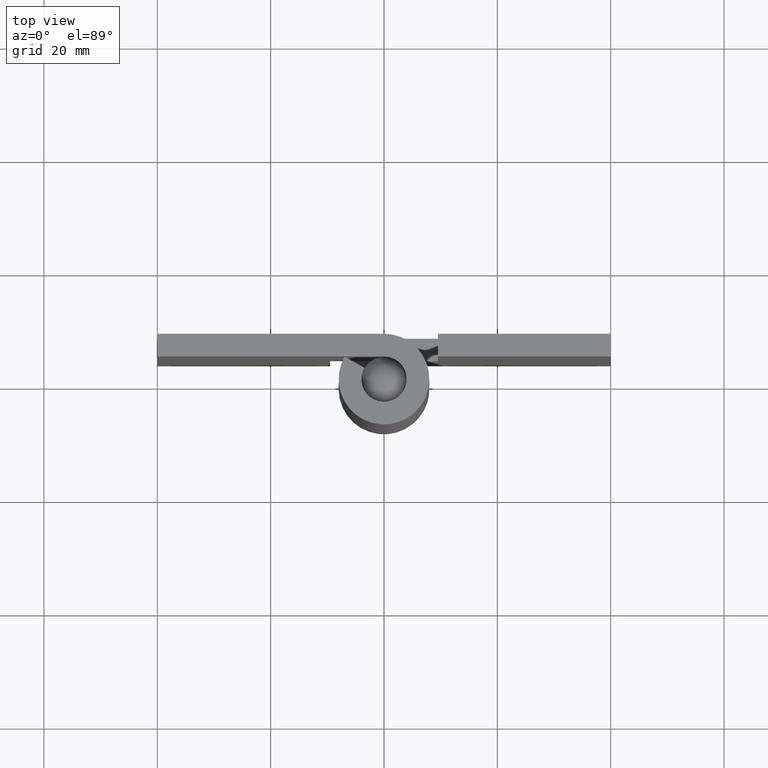
[diagram: clean part render]
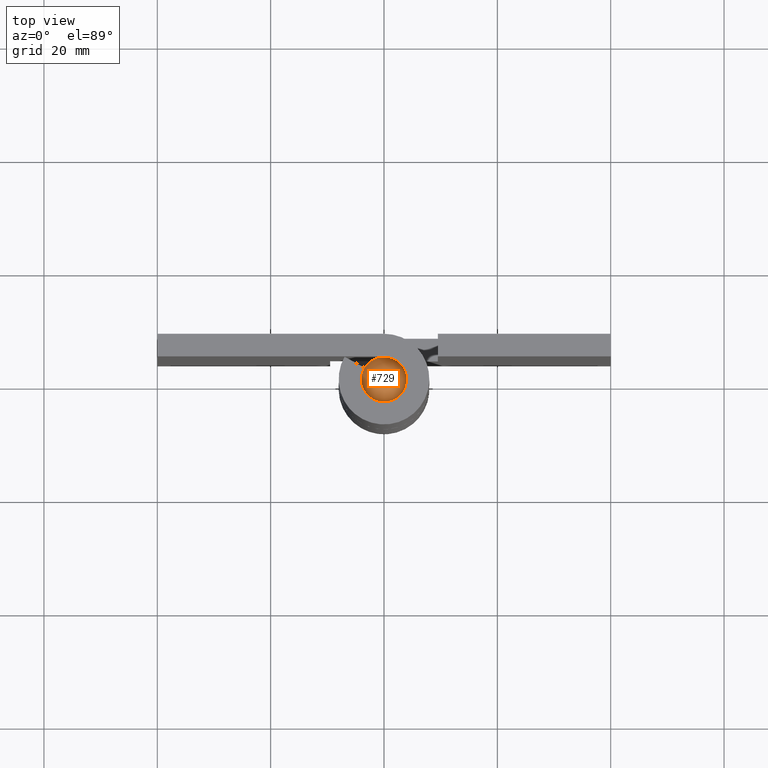
[diagram: same view with one face highlighted and labeled with its STEP entity id]
A machine part, top view. The second image highlights one B-rep face of the part: STEP entity #729.
In plain terms, the highlighted face is a freeform B-spline surface patch.
Its self-contained STEP definition (entity closure, byte-faithful):
#515=CARTESIAN_POINT('',(-0.472136938659876,3.972038105450761,94.0));
#516=VERTEX_POINT('',#515);
#517=CARTESIAN_POINT('',(4.0,0.0,94.0));
#518=VERTEX_POINT('',#517);
#519=CARTESIAN_POINT('',(-0.472136938659876,3.972038105450761,94.0));
#520=CARTESIAN_POINT('',(-0.236896478640829,4.0,94.0));
#521=CARTESIAN_POINT('',(0.0,4.0,94.0));
#522=CARTESIAN_POINT('',(4.000000000000000,4.000000000000000,94.000000000000014));
#523=CARTESIAN_POINT('',(4.0,0.0,94.0));
#531=(BOUNDED_CURVE()B_SPLINE_CURVE(2,(#519,#520,#521,#522,#523),.UNSPECIFIED.,.F.,.U.)B_SPLINE_CURVE_WITH_KNOTS((3,2,3),(0.229562473512850,0.250000000000000,0.500000000000000),.UNSPECIFIED.)CURVE()GEOMETRIC_REPRESENTATION_ITEM()RATIONAL_B_SPLINE_CURVE((0.956026754182408,0.976055948330373,1.0,0.707106781186548,1.0))REPRESENTATION_ITEM(''));
#532=EDGE_CURVE('',#516,#518,#531,.T.);
#534=CARTESIAN_POINT('',(0.244194158265194,-3.992539193679775,94.0));
#535=VERTEX_POINT('',#534);
#536=CARTESIAN_POINT('',(4.0,0.0,94.0));
#537=CARTESIAN_POINT('',(4.000000000000000,-3.762824267385283,94.0));
#538=CARTESIAN_POINT('',(0.244194158265194,-3.992539193679775,94.0));
#546=(BOUNDED_CURVE()B_SPLINE_CURVE(2,(#536,#537,#538),.UNSPECIFIED.,.F.,.U.)B_SPLINE_CURVE_WITH_KNOTS((3,3),(0.500000000000000,0.739332962231098),.UNSPECIFIED.)CURVE()GEOMETRIC_REPRESENTATION_ITEM()RATIONAL_B_SPLINE_CURVE((1.0,0.719603993295901,0.976072041649905))REPRESENTATION_ITEM(''));
#547=EDGE_CURVE('',#518,#535,#546,.T.);
#614=CARTESIAN_POINT('',(-4.0,0.0,94.0));
#615=VERTEX_POINT('',#614);
#616=CARTESIAN_POINT('',(-4.0,0.0,94.0));
#617=CARTESIAN_POINT('',(-4.0,3.552698103746307,94.0));
#618=CARTESIAN_POINT('',(-0.472136938659876,3.972038105450761,94.0));
#626=(BOUNDED_CURVE()B_SPLINE_CURVE(2,(#616,#617,#618),.UNSPECIFIED.,.F.,.U.)B_SPLINE_CURVE_WITH_KNOTS((3,3),(0.0,0.229562473512850),.UNSPECIFIED.)CURVE()GEOMETRIC_REPRESENTATION_ITEM()RATIONAL_B_SPLINE_CURVE((1.0,0.731050832856174,0.956026754182408))REPRESENTATION_ITEM(''));
#627=EDGE_CURVE('',#615,#516,#626,.T.);
#661=CARTESIAN_POINT('',(0.244194158265194,-3.992539193679776,94.0));
#662=CARTESIAN_POINT('',(0.122211053320474,-4.0,94.0));
#663=CARTESIAN_POINT('',(0.0,-4.0,94.0));
#664=CARTESIAN_POINT('',(-4.000000000000000,-4.000000000000000,94.000000000000014));
#665=CARTESIAN_POINT('',(-4.0,0.0,94.0));
#673=(BOUNDED_CURVE()B_SPLINE_CURVE(2,(#661,#662,#663,#664,#665),.UNSPECIFIED.,.F.,.U.)B_SPLINE_CURVE_WITH_KNOTS((3,2,3),(0.739332962231098,0.750000000000000,1.0),.UNSPECIFIED.)CURVE()GEOMETRIC_REPRESENTATION_ITEM()RATIONAL_B_SPLINE_CURVE((0.976072041649904,0.987502787890646,1.0,0.707106781186548,1.0))REPRESENTATION_ITEM(''));
#674=EDGE_CURVE('',#535,#615,#673,.T.);
#679=CARTESIAN_POINT('',(-2.622022120425378,-2.622022120425380,92.500000000000000));
#680=CARTESIAN_POINT('',(-2.374661543026758,-3.166215390702343,93.018867924528308));
#681=CARTESIAN_POINT('',(-0.998865569685858,-3.995462278743432,93.809523809523782));
#682=CARTESIAN_POINT('',(0.998865569685858,-3.995462278743432,93.809523809523782));
#683=CARTESIAN_POINT('',(2.374661543026753,-3.166215390702343,93.018867924528308));
#684=CARTESIAN_POINT('',(2.622022120425370,-2.622022120425380,92.499999999999972));
#685=CARTESIAN_POINT('',(-3.166215390702343,-2.374661543026758,93.018867924528308));
#686=CARTESIAN_POINT('',(-2.996596709057574,-2.996596709057574,93.809523809523782));
#687=CARTESIAN_POINT('',(-1.353301739574387,-4.059905218723166,95.161290322580655));
#688=CARTESIAN_POINT('',(1.353301739574393,-4.059905218723166,95.161290322580655));
#689=CARTESIAN_POINT('',(2.996596709057573,-2.996596709057574,93.809523809523782));
#690=CARTESIAN_POINT('',(3.166215390702337,-2.374661543026758,93.018867924528266));
#691=CARTESIAN_POINT('',(-3.995462278743432,-0.998865569685859,93.809523809523782));
#692=CARTESIAN_POINT('',(-4.059905218723166,-1.353301739574386,95.161290322580655));
#693=CARTESIAN_POINT('',(-2.097617696340300,-2.097617696340296,98.000000000000014));
#694=CARTESIAN_POINT('',(2.097617696340321,-2.097617696340296,98.0));
#695=CARTESIAN_POINT('',(4.059905218723174,-1.353301739574386,95.161290322580655));
#696=CARTESIAN_POINT('',(3.995462278743430,-0.998865569685859,93.809523809523753));
#697=CARTESIAN_POINT('',(-3.995462278743432,0.998865569685857,93.809523809523782));
#698=CARTESIAN_POINT('',(-4.059905218723166,1.353301739574395,95.161290322580655));
#699=CARTESIAN_POINT('',(-2.097617696340300,2.097617696340325,98.0));
#700=CARTESIAN_POINT('',(2.097617696340321,2.097617696340325,97.999999999999986));
#701=CARTESIAN_POINT('',(4.059905218723174,1.353301739574395,95.161290322580598));
#702=CARTESIAN_POINT('',(3.995462278743430,0.998865569685857,93.809523809523753));
#703=CARTESIAN_POINT('',(-3.166215390702343,2.374661543026752,93.018867924528266));
#704=CARTESIAN_POINT('',(-2.996596709057574,2.996596709057573,93.809523809523782));
#705=CARTESIAN_POINT('',(-1.353301739574387,4.059905218723175,95.161290322580598));
#706=CARTESIAN_POINT('',(1.353301739574393,4.059905218723175,95.161290322580598));
#707=CARTESIAN_POINT('',(2.996596709057573,2.996596709057573,93.809523809523753));
#708=CARTESIAN_POINT('',(3.166215390702337,2.374661543026752,93.018867924528266));
#709=CARTESIAN_POINT('',(-2.622022120425378,2.622022120425369,92.499999999999972));
#710=CARTESIAN_POINT('',(-2.374661543026758,3.166215390702337,93.018867924528266));
#711=CARTESIAN_POINT('',(-0.998865569685858,3.995462278743430,93.809523809523753));
#712=CARTESIAN_POINT('',(0.998865569685858,3.995462278743430,93.809523809523753));
#713=CARTESIAN_POINT('',(2.374661543026753,3.166215390702337,93.018867924528266));
#714=CARTESIAN_POINT('',(2.622022120425370,2.622022120425369,92.499999999999972));
#722=(BOUNDED_SURFACE()B_SPLINE_SURFACE(2,2,((#679,#685,#691,#697,#703,#709),(#680,#686,#692,#698,#704,#710),(#681,#687,#693,#699,#705,#711),(#682,#688,#694,#700,#706,#712),(#683,#689,#695,#701,#707,#713),(#684,#690,#696,#702,#708,#714)),.UNSPECIFIED.,.F.,.F.,.U.)B_SPLINE_SURFACE_WITH_KNOTS((3,1,1,1,3),(3,1,1,1,3),(0.0,3.688119026532415,7.376238053064830,11.064357079597240,14.752476106129659),(0.0,3.688119026532434,7.376238053064867,11.064357079597301,14.752476106129730),.UNSPECIFIED.)GEOMETRIC_REPRESENTATION_ITEM()RATIONAL_B_SPLINE_SURFACE(((3.200000000000017,2.650000000000013,2.100000000000009,2.100000000000009,2.650000000000013,3.200000000000017),(2.650000000000013,2.100000000000009,1.550000000000004,1.550000000000004,2.100000000000009,2.650000000000013),(2.100000000000009,1.550000000000004,1.0,1.0,1.550000000000004,2.100000000000009),(2.100000000000009,1.550000000000004,1.0,1.0,1.550000000000004,2.100000000000009),(2.650000000000013,2.100000000000009,1.550000000000004,1.550000000000004,2.100000000000009,2.650000000000013),(3.200000000000017,2.650000000000013,2.100000000000009,2.100000000000009,2.650000000000013,3.200000000000017)))REPRESENTATION_ITEM('')SURFACE());
#723=ORIENTED_EDGE('',*,*,#674,.F.);
#724=ORIENTED_EDGE('',*,*,#547,.F.);
#725=ORIENTED_EDGE('',*,*,#532,.F.);
#726=ORIENTED_EDGE('',*,*,#627,.F.);
#727=EDGE_LOOP('',(#723,#724,#725,#726));
#728=FACE_OUTER_BOUND('',#727,.T.);
#729=ADVANCED_FACE('',(#728),#722,.T.);